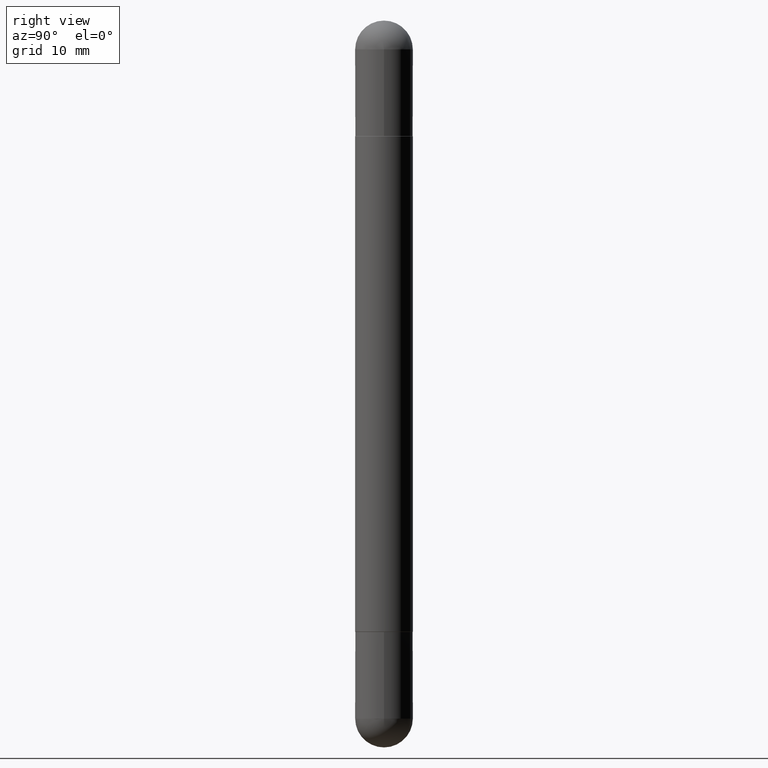
[diagram: clean part render]
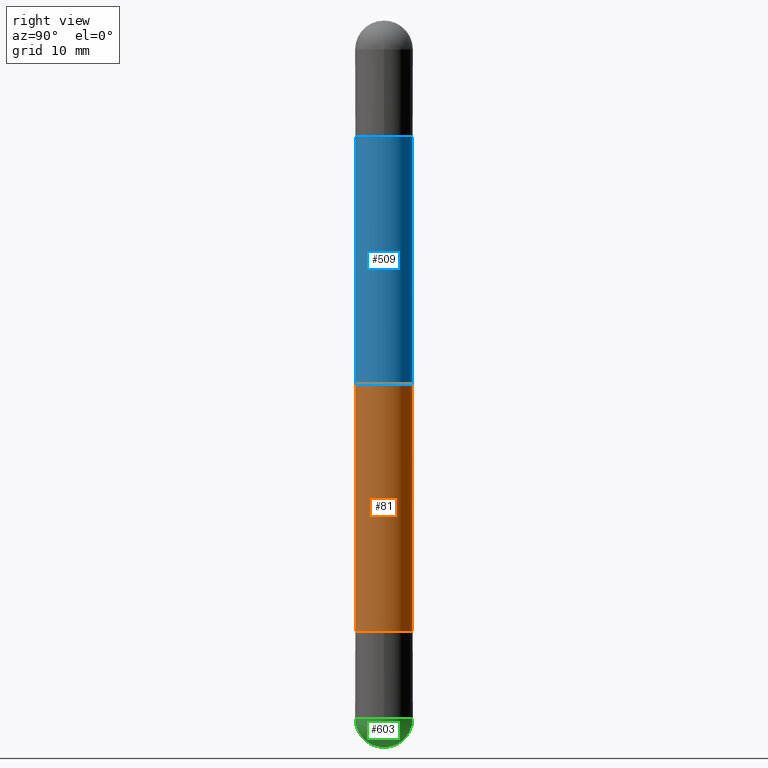
[diagram: same view with three faces highlighted in distinct colors, each labeled with its STEP entity id]
A machine part, right view with three faces highlighted in distinct colors.
Their STEP definitions:

[orange] entity #81 — the highlighted cylindrical surface (edge-blend (fillet) strip) has radius 2.5006 mm, axis along (-0, 0, -1).
#13 = ORIENTED_EDGE ( 'NONE', *, *, #95, .T. ) ;
#14 = DIRECTION ( 'NONE',  ( -6.982962677686265922E-15, -1.000000000000000000, -3.468572871589965081E-15 ) ) ;
#23 = ORIENTED_EDGE ( 'NONE', *, *, #589, .T. ) ;
#25 = DIRECTION ( 'NONE',  ( 2.445620201970747943E-29, -3.491264531461236863E-15, 1.000000000000000000 ) ) ;
#47 = EDGE_CURVE ( 'NONE', #700, #775, #180, .T. ) ;
#81 = ADVANCED_FACE ( 'NONE', ( #340 ), #140, .T. ) ;
#82 = DIRECTION ( 'NONE',  ( -2.445620201970747943E-29, 3.491264531461236468E-15, -1.000000000000000000 ) ) ;
#95 = EDGE_CURVE ( 'NONE', #598, #250, #235, .T. ) ;
#102 = DIRECTION ( 'NONE',  ( -2.445620201970747943E-29, 3.491264531461236863E-15, 1.000000000000000000 ) ) ;
#125 = DIRECTION ( 'NONE',  ( -2.445620201970747943E-29, 3.491264531461236468E-15, -1.000000000000000000 ) ) ;
#140 = CYLINDRICAL_SURFACE ( 'NONE', #442, 0.09845000000000013463 ) ;
#143 = CARTESIAN_POINT ( 'NONE',  ( -6.874726756182137434E-16, -0.09845000000000013463, -2.480300000000001059 ) ) ;
#170 = DIRECTION ( 'NONE',  ( -6.982962677686265133E-15, -1.000000000000000000, -5.549716594543950441E-15 ) ) ;
#180 = CIRCLE ( 'NONE', #582, 0.09845000000000024565 ) ;
#188 = LINE ( 'NONE', #439, #583 ) ;
#235 = CIRCLE ( 'NONE', #664, 0.09845000000000024565 ) ;
#250 = VERTEX_POINT ( 'NONE', #362 ) ;
#333 = VECTOR ( 'NONE', #82, 39.37007874015748143 ) ;
#340 = FACE_OUTER_BOUND ( 'NONE', #780, .T. ) ;
#344 = ORIENTED_EDGE ( 'NONE', *, *, #47, .F. ) ;
#353 = DIRECTION ( 'NONE',  ( -6.982962677686265922E-15, -1.000000000000000000, 2.774858297271972065E-15 ) ) ;
#362 = CARTESIAN_POINT ( 'NONE',  ( 6.754160278806389586E-16, 0.09844999999999297369, -2.085600000000000342 ) ) ;
#407 = EDGE_CURVE ( 'NONE', #775, #250, #188, .T. ) ;
#425 = CARTESIAN_POINT ( 'NONE',  ( -6.874726756181636507E-16, -0.09845000000000751761, -2.085599999999999898 ) ) ;
#439 = CARTESIAN_POINT ( 'NONE',  ( 6.754160278806080944E-16, 0.09845000000000013463, -2.480299999999999727 ) ) ;
#442 = AXIS2_PLACEMENT_3D ( 'NONE', #728, #495, #170 ) ;
#495 = DIRECTION ( 'NONE',  ( -2.445620201970747943E-29, 3.491264531461236863E-15, -1.000000000000000000 ) ) ;
#582 = AXIS2_PLACEMENT_3D ( 'NONE', #653, #25, #14 ) ;
#583 = VECTOR ( 'NONE', #125, 39.37007874015748143 ) ;
#589 = EDGE_CURVE ( 'NONE', #700, #598, #714, .T. ) ;
#598 = VERTEX_POINT ( 'NONE', #425 ) ;
#647 = ORIENTED_EDGE ( 'NONE', *, *, #407, .F. ) ;
#653 = CARTESIAN_POINT ( 'NONE',  ( 5.100585493230192921E-29, -7.281381306815556828E-15, -0.3947000000000000508 ) ) ;
#664 = AXIS2_PLACEMENT_3D ( 'NONE', #667, #102, #353 ) ;
#667 = CARTESIAN_POINT ( 'NONE',  ( 5.100585493230192921E-29, -7.281381306815556828E-15, -2.085600000000000342 ) ) ;
#700 = VERTEX_POINT ( 'NONE', #725 ) ;
#714 = LINE ( 'NONE', #143, #333 ) ;
#725 = CARTESIAN_POINT ( 'NONE',  ( -6.874726756181635521E-16, -0.09845000000000754536, -0.3947000000000003839 ) ) ;
#728 = CARTESIAN_POINT ( 'NONE',  ( 0.000000000000000000, 0.000000000000000000, -2.480300000000000171 ) ) ;
#775 = VERTEX_POINT ( 'NONE', #794 ) ;
#780 = EDGE_LOOP ( 'NONE', ( #647, #344, #23, #13 ) ) ;
#794 = CARTESIAN_POINT ( 'NONE',  ( 6.754160278806600606E-16, 0.09844999999999295981, -0.3946999999999996622 ) ) ;

[blue] entity #509 — the highlighted cylindrical surface (edge-blend (fillet) strip) has radius 2.5006 mm, axis along (-0, 0, -1).
#27 = DIRECTION ( 'NONE',  ( -6.982962677686265133E-15, -1.000000000000000000, -5.549716594543950441E-15 ) ) ;
#28 = ORIENTED_EDGE ( 'NONE', *, *, #375, .T. ) ;
#49 = AXIS2_PLACEMENT_3D ( 'NONE', #778, #276, #466 ) ;
#98 = DIRECTION ( 'NONE',  ( -0.000000000000000000, -0.000000000000000000, -1.000000000000000000 ) ) ;
#120 = LINE ( 'NONE', #507, #783 ) ;
#153 = CARTESIAN_POINT ( 'NONE',  ( -6.874726756181635521E-16, -0.09845000000000754536, -0.3947000000000003839 ) ) ;
#220 = DIRECTION ( 'NONE',  ( -2.445620201970747943E-29, 3.491264531461236863E-15, -1.000000000000000000 ) ) ;
#242 = EDGE_CURVE ( 'NONE', #637, #577, #638, .T. ) ;
#276 = DIRECTION ( 'NONE',  ( 2.445620201970747943E-29, -3.491264531461236863E-15, 1.000000000000000000 ) ) ;
#294 = LINE ( 'NONE', #740, #708 ) ;
#350 = CARTESIAN_POINT ( 'NONE',  ( 3.032935893474023384E-29, -4.329691708691653720E-15, -1.240150000000000086 ) ) ;
#357 = DIRECTION ( 'NONE',  ( -1.000000000000000000, 0.000000000000000000, 0.000000000000000000 ) ) ;
#366 = CARTESIAN_POINT ( 'NONE',  ( 6.754160278806588773E-16, 0.09844999999999579088, -1.240150000000000086 ) ) ;
#368 = DIRECTION ( 'NONE',  ( -2.445620201970747943E-29, 3.491264531461236468E-15, -1.000000000000000000 ) ) ;
#375 = EDGE_CURVE ( 'NONE', #541, #577, #120, .T. ) ;
#451 = CARTESIAN_POINT ( 'NONE',  ( 0.000000000000000000, 0.000000000000000000, -2.480300000000000171 ) ) ;
#456 = CYLINDRICAL_SURFACE ( 'NONE', #771, 0.09845000000000013463 ) ;
#466 = DIRECTION ( 'NONE',  ( -6.982962677686265922E-15, -1.000000000000000000, -3.468572871589965081E-15 ) ) ;
#481 = EDGE_LOOP ( 'NONE', ( #501, #692, #28, #762 ) ) ;
#498 = VERTEX_POINT ( 'NONE', #660 ) ;
#501 = ORIENTED_EDGE ( 'NONE', *, *, #619, .F. ) ;
#507 = CARTESIAN_POINT ( 'NONE',  ( -6.874726756182137434E-16, -0.09845000000000013463, -2.480300000000001059 ) ) ;
#509 = ADVANCED_FACE ( 'NONE', ( #718 ), #456, .T. ) ;
#526 = EDGE_CURVE ( 'NONE', #541, #498, #720, .T. ) ;
#541 = VERTEX_POINT ( 'NONE', #153 ) ;
#546 = DIRECTION ( 'NONE',  ( -2.445620201970747943E-29, 3.491264531461236468E-15, -1.000000000000000000 ) ) ;
#577 = VERTEX_POINT ( 'NONE', #579 ) ;
#579 = CARTESIAN_POINT ( 'NONE',  ( -6.874726756181731170E-16, -0.09845000000000446450, -1.240150000000000086 ) ) ;
#611 = AXIS2_PLACEMENT_3D ( 'NONE', #350, #98, #357 ) ;
#619 = EDGE_CURVE ( 'NONE', #498, #637, #294, .T. ) ;
#637 = VERTEX_POINT ( 'NONE', #366 ) ;
#638 = CIRCLE ( 'NONE', #611, 0.09845000000000013463 ) ;
#660 = CARTESIAN_POINT ( 'NONE',  ( 6.754160278806600606E-16, 0.09844999999999295981, -0.3946999999999996622 ) ) ;
#692 = ORIENTED_EDGE ( 'NONE', *, *, #526, .F. ) ;
#708 = VECTOR ( 'NONE', #546, 39.37007874015748143 ) ;
#718 = FACE_OUTER_BOUND ( 'NONE', #481, .T. ) ;
#720 = CIRCLE ( 'NONE', #49, 0.09845000000000024565 ) ;
#740 = CARTESIAN_POINT ( 'NONE',  ( 6.754160278806080944E-16, 0.09845000000000013463, -2.480299999999999727 ) ) ;
#762 = ORIENTED_EDGE ( 'NONE', *, *, #242, .F. ) ;
#771 = AXIS2_PLACEMENT_3D ( 'NONE', #451, #220, #27 ) ;
#778 = CARTESIAN_POINT ( 'NONE',  ( 5.100585493230192921E-29, -7.281381306815556828E-15, -0.3947000000000000508 ) ) ;
#783 = VECTOR ( 'NONE', #368, 39.37007874015748143 ) ;

[green] entity #603 — the highlighted spherical surface has radius 2.5006 mm.
#6 = DIRECTION ( 'NONE',  ( -1.000000000000000000, 7.105427357601001070E-15, -4.926315508542082329E-29 ) ) ;
#40 = CARTESIAN_POINT ( 'NONE',  ( -6.995293233557624958E-16, -0.09845000000000865559, -2.381850000000000023 ) ) ;
#66 = DIRECTION ( 'NONE',  ( 1.000000000000000000, -6.982962677686273810E-15, 0.000000000000000000 ) ) ;
#107 = CARTESIAN_POINT ( 'NONE',  ( 0.09845000000000000973, -8.488227569895042768E-15, -2.381850000000000467 ) ) ;
#118 = DIRECTION ( 'NONE',  ( -2.445468806185136597E-29, 3.491481338843145583E-15, 1.000000000000000000 ) ) ;
#121 = ORIENTED_EDGE ( 'NONE', *, *, #335, .F. ) ;
#131 = CARTESIAN_POINT ( 'NONE',  ( 6.874726756182700483E-16, 0.09844999999999154427, -2.381850000000000911 ) ) ;
#156 = DIRECTION ( 'NONE',  ( 6.982962677686265922E-15, 1.000000000000000000, -2.774858297271973643E-15 ) ) ;
#164 = AXIS2_PLACEMENT_3D ( 'NONE', #436, #6, #259 ) ;
#169 = SPHERICAL_SURFACE ( 'NONE', #496, 0.09845000000000017626 ) ;
#184 = CARTESIAN_POINT ( 'NONE',  ( 5.824739876012068780E-29, -8.316184826923546689E-15, -2.381850000000000467 ) ) ;
#209 = AXIS2_PLACEMENT_3D ( 'NONE', #359, #553, #669 ) ;
#214 = EDGE_CURVE ( 'NONE', #248, #633, #271, .T. ) ;
#248 = VERTEX_POINT ( 'NONE', #40 ) ;
#259 = DIRECTION ( 'NONE',  ( -7.105427357601001070E-15, -1.000000000000000000, 0.000000000000000000 ) ) ;
#271 = CIRCLE ( 'NONE', #504, 0.09845000000000000973 ) ;
#280 = ORIENTED_EDGE ( 'NONE', *, *, #791, .T. ) ;
#285 = CIRCLE ( 'NONE', #164, 0.09845000000000017626 ) ;
#305 = ORIENTED_EDGE ( 'NONE', *, *, #312, .F. ) ;
#308 = VERTEX_POINT ( 'NONE', #131 ) ;
#312 = EDGE_CURVE ( 'NONE', #633, #308, #321, .T. ) ;
#321 = CIRCLE ( 'NONE', #796, 0.09845000000000000973 ) ;
#335 = EDGE_CURVE ( 'NONE', #751, #248, #285, .T. ) ;
#336 = CIRCLE ( 'NONE', #209, 0.09845000000000017626 ) ;
#359 = CARTESIAN_POINT ( 'NONE',  ( 5.493620098098182533E-29, -8.790367195063598563E-15, -2.381850000000000467 ) ) ;
#383 = CARTESIAN_POINT ( 'NONE',  ( 5.824739876012068780E-29, -8.316184826923546689E-15, -2.381850000000000467 ) ) ;
#436 = CARTESIAN_POINT ( 'NONE',  ( 5.493620098098182533E-29, -8.790367195063598563E-15, -2.381850000000000467 ) ) ;
#471 = DIRECTION ( 'NONE',  ( -1.000000000000000000, 6.982962677686265922E-15, -4.883557194083112901E-29 ) ) ;
#496 = AXIS2_PLACEMENT_3D ( 'NONE', #672, #471, #156 ) ;
#504 = AXIS2_PLACEMENT_3D ( 'NONE', #184, #737, #733 ) ;
#553 = DIRECTION ( 'NONE',  ( 1.000000000000000000, -6.982962677686265922E-15, 4.883557194083112340E-29 ) ) ;
#561 = ORIENTED_EDGE ( 'NONE', *, *, #214, .F. ) ;
#603 = ADVANCED_FACE ( 'NONE', ( #802 ), #169, .T. ) ;
#633 = VERTEX_POINT ( 'NONE', #107 ) ;
#669 = DIRECTION ( 'NONE',  ( 6.982962677686265922E-15, 1.000000000000000000, 0.000000000000000000 ) ) ;
#672 = CARTESIAN_POINT ( 'NONE',  ( 5.493620098098182533E-29, -8.790367195063598563E-15, -2.381850000000000467 ) ) ;
#707 = EDGE_LOOP ( 'NONE', ( #121, #280, #305, #561 ) ) ;
#733 = DIRECTION ( 'NONE',  ( 1.000000000000000000, -6.982962677686273810E-15, 0.000000000000000000 ) ) ;
#737 = DIRECTION ( 'NONE',  ( -2.445468806185136597E-29, 3.491481338843145583E-15, 1.000000000000000000 ) ) ;
#751 = VERTEX_POINT ( 'NONE', #804 ) ;
#791 = EDGE_CURVE ( 'NONE', #751, #308, #336, .T. ) ;
#796 = AXIS2_PLACEMENT_3D ( 'NONE', #383, #118, #66 ) ;
#802 = FACE_OUTER_BOUND ( 'NONE', #707, .T. ) ;
#804 = CARTESIAN_POINT ( 'NONE',  ( 5.738586058125595532E-29, -9.128075209003904434E-15, -2.480300000000001059 ) ) ;